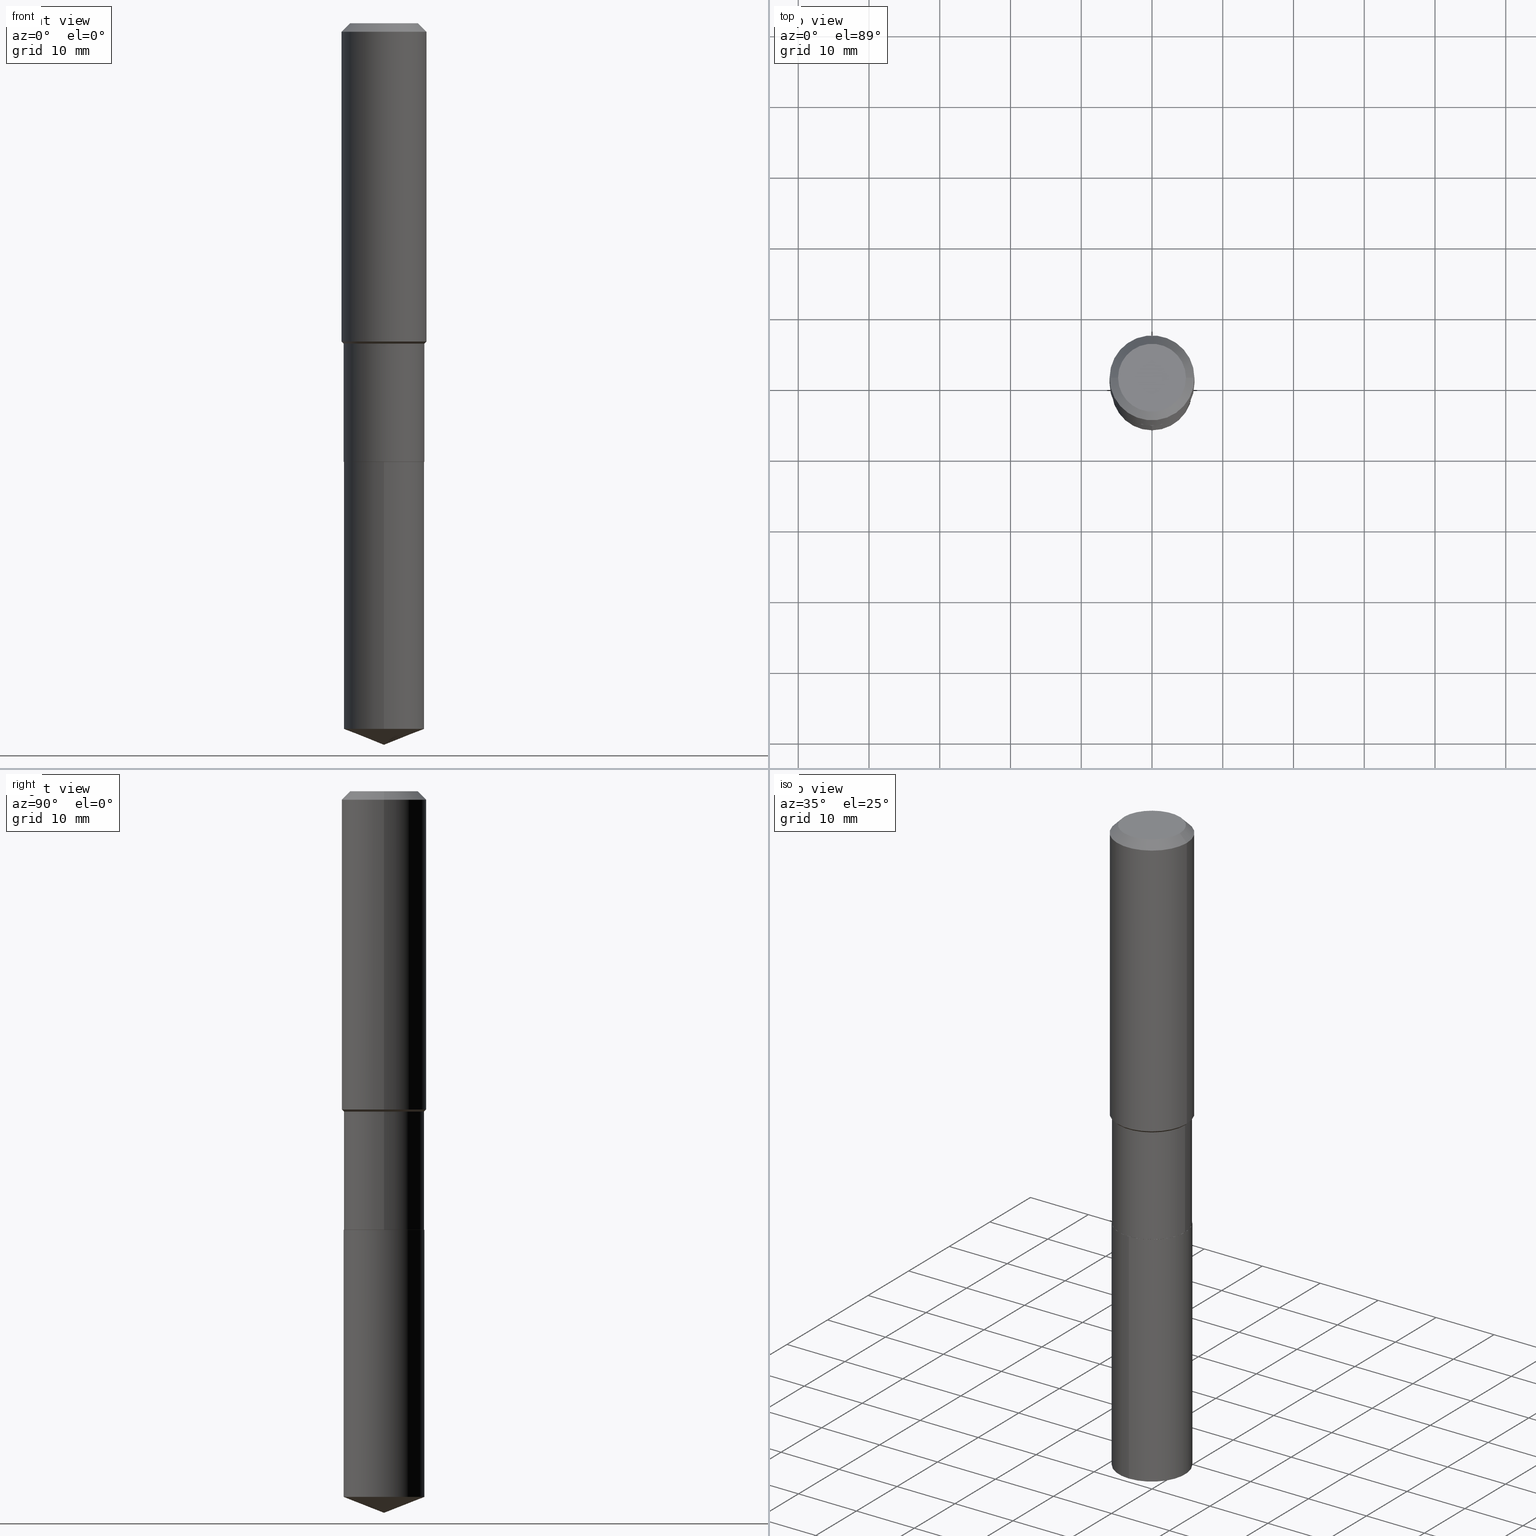
[diagram: canonical four-view strip — front | top / right | iso, engineering-drawing reading convention]
A machine part, canonical four-view strip (front | top / right | iso — engineering-drawing reading convention). The complete STEP part file that produces these views, byte-faithful:
ISO-10303-21;
HEADER;
FILE_DESCRIPTION (( 'STEP AP203' ),
    '1' );
FILE_NAME ('66484.STEP',
    '2024-04-24T23:33:29',
    ( '' ),
    ( '' ),
    'SwSTEP 2.0',
    'SolidWorks 2023',
    '' );
FILE_SCHEMA (( 'CONFIG_CONTROL_DESIGN' ));
ENDSEC;

DATA;
#1 = LOCAL_TIME ( 19, 33, 29.00000000000000000, #327 ) ;
#2 = CARTESIAN_POINT ( 'NONE',  ( -0.2243999999999999329, -4.630853328111665089E-15, -1.783000000000000140 ) ) ;
#3 = PRODUCT_DEFINITION_SHAPE ( 'NONE', 'NONE',  #151 ) ;
#4 = DIRECTION ( 'NONE',  ( 6.611014441532066589E-15, 0.9304175679820272382, 0.3665012267242905297 ) ) ;
#5 = PERSON_AND_ORGANIZATION ( #207, #107 ) ;
#6 = ORIENTED_EDGE ( 'NONE', *, *, #289, .T. ) ;
#7 = AXIS2_PLACEMENT_3D ( 'NONE', #69, #61, #33 ) ;
#8 = DIRECTION ( 'NONE',  ( -2.445468806185136597E-29, 3.491481338843145583E-15, 1.000000000000000000 ) ) ;
#9 = AXIS2_PLACEMENT_3D ( 'NONE', #124, #117, #159 ) ;
#10 = LINE ( 'NONE', #351, #347 ) ;
#11 = ORIENTED_EDGE ( 'NONE', *, *, #13, .F. ) ;
#12 = AXIS2_PLACEMENT_3D ( 'NONE', #34, #447, #263 ) ;
#13 = EDGE_CURVE ( 'NONE', #94, #281, #330, .T. ) ;
#14 = AXIS2_PLACEMENT_3D ( 'NONE', #106, #146, #111 ) ;
#15 = ORIENTED_EDGE ( 'NONE', *, *, #386, .T. ) ;
#16 = DIRECTION ( 'NONE',  ( -6.497071151882120625E-15, -0.9304175679820246847, 0.3665012267242971356 ) ) ;
#17 = ORIENTED_EDGE ( 'NONE', *, *, #30, .T. ) ;
#18 = DIRECTION ( 'NONE',  ( -2.445468806185136597E-29, 3.491481338843145583E-15, 1.000000000000000000 ) ) ;
#19 = VECTOR ( 'NONE', #16, 39.37007874015747433 ) ;
#20 = ORIENTED_EDGE ( 'NONE', *, *, #201, .F. ) ;
#21 = DIRECTION ( 'NONE',  ( -6.982962677686265133E-15, -1.000000000000000000, 3.652203200085913145E-15 ) ) ;
#22 = ORIENTED_EDGE ( 'NONE', *, *, #463, .F. ) ;
#23 = DIRECTION ( 'NONE',  ( 1.000000000000000000, -6.982962677686266711E-15, 4.876176775795936353E-29 ) ) ;
#24 = ORIENTED_EDGE ( 'NONE', *, *, #446, .T. ) ;
#25 = ADVANCED_FACE ( 'NONE', ( #439 ), #267, .T. ) ;
#26 = DIRECTION ( 'NONE',  ( -2.445399602320894408E-29, 3.491580442715579660E-15, 1.000000000000000000 ) ) ;
#27 = ORIENTED_EDGE ( 'NONE', *, *, #63, .F. ) ;
#28 = AXIS2_PLACEMENT_3D ( 'NONE', #333, #37, #364 ) ;
#29 = FACE_OUTER_BOUND ( 'NONE', #221, .T. ) ;
#30 = EDGE_CURVE ( 'NONE', #281, #202, #224, .T. ) ;
#31 = EDGE_LOOP ( 'NONE', ( #56, #318, #359, #356 ) ) ;
#32 = APPROVAL_DATE_TIME ( #440, #465 ) ;
#33 = DIRECTION ( 'NONE',  ( 1.000000000000000000, -6.982962677686266711E-15, 0.000000000000000000 ) ) ;
#34 = CARTESIAN_POINT ( 'NONE',  ( 0.000000000000000000, 0.000000000000000000, 0.000000000000000000 ) ) ;
#35 = ADVANCED_FACE ( 'NONE', ( #485 ), #70, .T. ) ;
#36 = PERSON_AND_ORGANIZATION_ROLE ( 'classification_officer' ) ;
#37 = DIRECTION ( 'NONE',  ( 2.445399602320894128E-29, -3.491580442715579660E-15, -1.000000000000000000 ) ) ;
#38 = ORIENTED_EDGE ( 'NONE', *, *, #303, .F. ) ;
#39 = SECURITY_CLASSIFICATION_LEVEL ( 'unclassified' ) ;
#40 = APPROVAL_STATUS ( 'not_yet_approved' ) ;
#41 = AXIS2_PLACEMENT_3D ( 'NONE', #441, #211, #110 ) ;
#42 = ORIENTED_EDGE ( 'NONE', *, *, #269, .F. ) ;
#43 = DIRECTION ( 'NONE',  ( -2.445468806185136597E-29, 3.491481338843145583E-15, 1.000000000000000000 ) ) ;
#44 = DIRECTION ( 'NONE',  ( 0.7071067811864267805, -2.468850131080992517E-15, 0.7071067811866682540 ) ) ;
#45 = CARTESIAN_POINT ( 'NONE',  ( 1.594457899045760384E-15, 0.2243999999999862494, -3.927306489272008427 ) ) ;
#46 = PERSON_AND_ORGANIZATION ( #207, #107 ) ;
#47 = AXIS2_PLACEMENT_3D ( 'NONE', #355, #200, #21 ) ;
#48 = DIRECTION ( 'NONE',  ( -2.445468806185136877E-29, 3.491481338843145188E-15, 1.000000000000000000 ) ) ;
#49 = VERTEX_POINT ( 'NONE', #413 ) ;
#50 = EDGE_CURVE ( 'NONE', #281, #67, #339, .T. ) ;
#51 = CONICAL_SURFACE ( 'NONE', #322, 0.2361999999999999933, 0.7853981633974452814 ) ;
#52 = MANIFOLD_SOLID_BREP ( 'Body-Move/Copy2[1]', #484 ) ;
#53 = AXIS2_PLACEMENT_3D ( 'NONE', #406, #249, #134 ) ;
#54 = FACE_OUTER_BOUND ( 'NONE', #172, .T. ) ;
#55 = CARTESIAN_POINT ( 'NONE',  ( -0.2361999999999999933, -1.496222721037607866E-15, -0.04724000000000028177 ) ) ;
#56 = ORIENTED_EDGE ( 'NONE', *, *, #487, .F. ) ;
#57 = CIRCLE ( 'NONE', #282, 0.2238999999999999879 ) ;
#58 = DIRECTION ( 'NONE',  ( -2.445468806185136597E-29, 3.491481338843145583E-15, 1.000000000000000000 ) ) ;
#59 = LOCAL_TIME ( 19, 33, 29.00000000000000000, #457 ) ;
#60 = ORIENTED_EDGE ( 'NONE', *, *, #289, .F. ) ;
#61 = DIRECTION ( 'NONE',  ( -2.445468806185136597E-29, 3.491481338843145583E-15, 1.000000000000000000 ) ) ;
#62 = ORIENTED_EDGE ( 'NONE', *, *, #187, .F. ) ;
#63 = EDGE_CURVE ( 'NONE', #310, #212, #179, .T. ) ;
#64 = DIMENSIONAL_EXPONENTS ( 1.000000000000000000, 0.000000000000000000, 0.000000000000000000, 0.000000000000000000, 0.000000000000000000, 0.000000000000000000, 0.000000000000000000 ) ;
#65 = APPLICATION_CONTEXT ( 'configuration controlled 3d designs of mechanical parts and assemblies' ) ;
#66 = CARTESIAN_POINT ( 'NONE',  ( -1.566976824872701766E-15, -0.2244000000000136719, -3.927306489272007539 ) ) ;
#67 = VERTEX_POINT ( 'NONE', #490 ) ;
#68 = PERSON_AND_ORGANIZATION ( #207, #107 ) ;
#69 = CARTESIAN_POINT ( 'NONE',  ( 1.155239464041865506E-30, -1.649375784469511859E-16, -0.04724000000000028177 ) ) ;
#70 = CONICAL_SURFACE ( 'NONE', #165, 0.2238999999999999879, 0.7853981633972775267 ) ;
#71 = ORIENTED_EDGE ( 'NONE', *, *, #232, .F. ) ;
#72 = APPROVAL_STATUS ( 'not_yet_approved' ) ;
#73 = VECTOR ( 'NONE', #181, 39.37007874015748143 ) ;
#74 = CARTESIAN_POINT ( 'NONE',  ( 0.2243999999999999329, -7.792288052030127830E-15, -1.783000000000000140 ) ) ;
#75 = CIRCLE ( 'NONE', #114, 0.2362000000000002153 ) ;
#76 = ADVANCED_FACE ( 'NONE', ( #79 ), #192, .T. ) ;
#77 = DIRECTION ( 'NONE',  ( 1.000000000000000000, -6.982962677686269077E-15, 0.000000000000000000 ) ) ;
#78 = DIRECTION ( 'NONE',  ( -6.982962677686265133E-15, -1.000000000000000000, 2.434802133390608632E-15 ) ) ;
#79 = FACE_OUTER_BOUND ( 'NONE', #288, .T. ) ;
#80 = DATE_TIME_ROLE ( 'creation_date' ) ;
#81 = DIRECTION ( 'NONE',  ( 0.7071067811865515695, -2.468850131082299265E-15, 0.7071067811865434649 ) ) ;
#82 = FACE_OUTER_BOUND ( 'NONE', #316, .T. ) ;
#83 = CARTESIAN_POINT ( 'NONE',  ( 5.969144809017300159E-29, -8.522356799982234543E-15, -2.440900000000000070 ) ) ;
#84 = CALENDAR_DATE ( 2024, 24, 4 ) ;
#85 = CARTESIAN_POINT ( 'NONE',  ( 0.2361999999999999933, -1.814313362916447440E-15, -0.04724000000000028177 ) ) ;
#86 = ADVANCED_FACE ( 'NONE', ( #299 ), #451, .T. ) ;
#87 = FACE_OUTER_BOUND ( 'NONE', #472, .T. ) ;
#88 = CIRCLE ( 'NONE', #365, 0.2244000000000000161 ) ;
#89 = DESIGN_CONTEXT ( 'detailed design', #65, 'design' ) ;
#90 = DIRECTION ( 'NONE',  ( -2.445399602320894689E-29, 3.491580442715579660E-15, 1.000000000000000000 ) ) ;
#91 = CC_DESIGN_APPROVAL ( #382, ( #408 ) ) ;
#92 = ORIENTED_EDGE ( 'NONE', *, *, #116, .F. ) ;
#93 = DIRECTION ( 'NONE',  ( -2.445399602320894408E-29, 3.491580442715579660E-15, 1.000000000000000000 ) ) ;
#94 = VERTEX_POINT ( 'NONE', #482 ) ;
#95 = DIRECTION ( 'NONE',  ( 1.000000000000000000, -6.982962677686269866E-15, 0.000000000000000000 ) ) ;
#96 = ADVANCED_FACE ( 'NONE', ( #82 ), #133, .T. ) ;
#97 = CIRCLE ( 'NONE', #197, 0.2244000000000000161 ) ;
#98 = ORIENTED_EDGE ( 'NONE', *, *, #161, .T. ) ;
#99 = CYLINDRICAL_SURFACE ( 'NONE', #376, 0.2243999999999999606 ) ;
#100 = EDGE_CURVE ( 'NONE', #286, #49, #474, .T. ) ;
#101 = VERTEX_POINT ( 'NONE', #381 ) ;
#102 = LINE ( 'NONE', #473, #390 ) ;
#103 = EDGE_LOOP ( 'NONE', ( #27, #250, #478 ) ) ;
#104 = EDGE_CURVE ( 'NONE', #260, #279, #57, .T. ) ;
#105 = DIRECTION ( 'NONE',  ( -6.982962677686265133E-15, -1.000000000000000000, 3.652203200085913145E-15 ) ) ;
#106 = CARTESIAN_POINT ( 'NONE',  ( 5.969144809017299038E-29, -8.522356799982232966E-15, -2.440900000000000070 ) ) ;
#107 = ORGANIZATION ( 'UNSPECIFIED', 'UNSPECIFIED', '' ) ;
#108 = CARTESIAN_POINT ( 'NONE',  ( 9.819991183040015308E-29, -1.402113958381295422E-14, -4.015699999999999825 ) ) ;
#109 = DIRECTION ( 'NONE',  ( 1.000000000000000000, -6.982962677686269077E-15, 0.000000000000000000 ) ) ;
#110 = DIRECTION ( 'NONE',  ( 1.000000000000000000, -6.982962677686266711E-15, 0.000000000000000000 ) ) ;
#111 = DIRECTION ( 'NONE',  ( -6.982962677686265133E-15, -1.000000000000000000, 3.652203200085913145E-15 ) ) ;
#112 = APPROVAL_DATE_TIME ( #297, #382 ) ;
#113 = ORIENTED_EDGE ( 'NONE', *, *, #341, .T. ) ;
#114 = AXIS2_PLACEMENT_3D ( 'NONE', #488, #445, #209 ) ;
#115 = ORIENTED_EDGE ( 'NONE', *, *, #232, .T. ) ;
#116 = EDGE_CURVE ( 'NONE', #279, #260, #136, .T. ) ;
#117 = DIRECTION ( 'NONE',  ( -2.445468806185136597E-29, 3.491481338843145583E-15, 1.000000000000000000 ) ) ;
#118 = ORIENTED_EDGE ( 'NONE', *, *, #361, .F. ) ;
#119 = DIRECTION ( 'NONE',  ( 0.000000000000000000, 0.000000000000000000, 1.000000000000000000 ) ) ;
#120 = DIRECTION ( 'NONE',  ( -0.7071067811864267805, 7.493145998869918709E-15, 0.7071067811866682540 ) ) ;
#121 = APPROVAL_PERSON_ORGANIZATION ( #375, #465, #360 ) ;
#122 = EDGE_LOOP ( 'NONE', ( #350, #6 ) ) ;
#123 = EDGE_LOOP ( 'NONE', ( #42, #241, #126, #62 ) ) ;
#124 = CARTESIAN_POINT ( 'NONE',  ( -9.427742298522546243E-47, 1.346031739168365344E-32, 3.855188123715862256E-18 ) ) ;
#125 =( GEOMETRIC_REPRESENTATION_CONTEXT ( 3 ) GLOBAL_UNCERTAINTY_ASSIGNED_CONTEXT ( ( #349 ) ) GLOBAL_UNIT_ASSIGNED_CONTEXT ( ( #453, #449, #414 ) ) REPRESENTATION_CONTEXT ( 'NONE', 'WORKASPACE' ) );
#126 = ORIENTED_EDGE ( 'NONE', *, *, #456, .T. ) ;
#127 = AXIS2_PLACEMENT_3D ( 'NONE', #193, #428, #307 ) ;
#128 = FACE_OUTER_BOUND ( 'NONE', #196, .T. ) ;
#129 = ORIENTED_EDGE ( 'NONE', *, *, #13, .T. ) ;
#130 = ADVANCED_FACE ( 'NONE', ( #256 ), #51, .T. ) ;
#131 = DIRECTION ( 'NONE',  ( -2.445468806185136597E-29, 3.491481338843145583E-15, 1.000000000000000000 ) ) ;
#132 = ORIENTED_EDGE ( 'NONE', *, *, #463, .T. ) ;
#133 = CONICAL_SURFACE ( 'NONE', #195, 99.94676754583997536, 1.195550537616119513 ) ;
#134 = DIRECTION ( 'NONE',  ( -6.982962677686265133E-15, -1.000000000000000000, 3.652203200085913145E-15 ) ) ;
#135 = EDGE_CURVE ( 'NONE', #464, #202, #352, .T. ) ;
#136 = CIRCLE ( 'NONE', #415, 0.2238999999999999879 ) ;
#137 = ORIENTED_EDGE ( 'NONE', *, *, #116, .T. ) ;
#138 = DIRECTION ( 'NONE',  ( 0.7071067811865453523, -7.319954787623248157E-15, -0.7071067811865496822 ) ) ;
#139 = ORIENTED_EDGE ( 'NONE', *, *, #222, .F. ) ;
#140 = FACE_OUTER_BOUND ( 'NONE', #164, .T. ) ;
#141 = DIRECTION ( 'NONE',  ( -2.445468806185136877E-29, 3.491481338843145188E-15, 1.000000000000000000 ) ) ;
#142 = PLANE ( 'NONE',  #462 ) ;
#143 = PRODUCT ( '66484', '66484', '', ( #340 ) ) ;
#144 = CARTESIAN_POINT ( 'NONE',  ( 0.2243999999999999329, -7.792288052030127830E-15, -1.783000000000000140 ) ) ;
#145 = CARTESIAN_POINT ( 'NONE',  ( 0.2362000000000001043, -1.649375784469496920E-15, 1.151752954443000508E-29 ) ) ;
#146 = DIRECTION ( 'NONE',  ( -2.445399602320894408E-29, 3.491580442715579660E-15, 1.000000000000000000 ) ) ;
#147 = LINE ( 'NONE', #2, #155 ) ;
#148 = ADVANCED_FACE ( 'NONE', ( #265 ), #236, .T. ) ;
#149 = EDGE_LOOP ( 'NONE', ( #475, #468, #115, #60 ) ) ;
#150 = DIRECTION ( 'NONE',  ( -2.445468806185136597E-29, 3.491481338843145583E-15, 1.000000000000000000 ) ) ;
#151 = PRODUCT_DEFINITION ( 'UNKNOWN', '', #231, #89 ) ;
#152 = CARTESIAN_POINT ( 'NONE',  ( 4.360270881428098808E-29, -6.225311227157329429E-15, -1.783000000000000140 ) ) ;
#153 = AXIS2_PLACEMENT_3D ( 'NONE', #298, #150, #300 ) ;
#154 = APPROVAL_ROLE ( '' ) ;
#155 = VECTOR ( 'NONE', #460, 39.37007874015748143 ) ;
#156 = DIRECTION ( 'NONE',  ( -2.445399602320894689E-29, 3.491580442715579660E-15, 1.000000000000000000 ) ) ;
#157 = ADVANCED_FACE ( 'NONE', ( #387 ), #301, .T. ) ;
#158 = CARTESIAN_POINT ( 'NONE',  ( 0.000000000000000000, 0.000000000000000000, 0.000000000000000000 ) ) ;
#159 = DIRECTION ( 'NONE',  ( 1.000000000000000000, -6.982962677686266711E-15, 4.876185090822587894E-29 ) ) ;
#160 = AXIS2_PLACEMENT_3D ( 'NONE', #246, #178, #483 ) ;
#161 = EDGE_CURVE ( 'NONE', #101, #177, #194, .T. ) ;
#162 = CYLINDRICAL_SURFACE ( 'NONE', #47, 0.2244000000000000161 ) ;
#163 = PRODUCT_RELATED_PRODUCT_CATEGORY ( 'detail', '', ( #143 ) ) ;
#164 = EDGE_LOOP ( 'NONE', ( #210, #334, #216, #11 ) ) ;
#165 = AXIS2_PLACEMENT_3D ( 'NONE', #254, #296, #417 ) ;
#166 = DIRECTION ( 'NONE',  ( 1.000000000000000000, -6.982962677686269866E-15, 0.000000000000000000 ) ) ;
#167 = VECTOR ( 'NONE', #120, 39.37007874015748143 ) ;
#168 = ORIENTED_EDGE ( 'NONE', *, *, #248, .T. ) ;
#169 = EDGE_CURVE ( 'NONE', #101, #67, #344, .T. ) ;
#171 = CARTESIAN_POINT ( 'NONE',  ( -0.2362000000000001043, 1.678301941865357380E-15, -1.161852468318209317E-29 ) ) ;
#170 = APPROVAL_PERSON_ORGANIZATION ( #68, #382, #183 ) ;
#172 = EDGE_LOOP ( 'NONE', ( #24, #168, #208, #71 ) ) ;
#173 = CARTESIAN_POINT ( 'NONE',  ( 0.000000000000000000, 0.000000000000000000, 0.000000000000000000 ) ) ;
#174 = ORIENTED_EDGE ( 'NONE', *, *, #341, .F. ) ;
#175 = DIRECTION ( 'NONE',  ( -0.7071067811865453523, 2.468850131082234184E-15, -0.7071067811865496822 ) ) ;
#176 = CONICAL_SURFACE ( 'NONE', #235, 99.94676754583997536, 1.195550537616119513 ) ;
#177 = VERTEX_POINT ( 'NONE', #55 ) ;
#178 = DIRECTION ( 'NONE',  ( -2.445468806185136597E-29, 3.491481338843145583E-15, 1.000000000000000000 ) ) ;
#179 = LINE ( 'NONE', #337, #374 ) ;
#180 = CALENDAR_DATE ( 2024, 24, 4 ) ;
#181 = DIRECTION ( 'NONE',  ( -2.445468806185136877E-29, 3.491481338843145188E-15, 1.000000000000000000 ) ) ;
#182 = ORIENTED_EDGE ( 'NONE', *, *, #353, .F. ) ;
#183 = APPROVAL_ROLE ( '' ) ;
#184 = CARTESIAN_POINT ( 'NONE',  ( 0.2238999999999999879, -1.008584214351618994E-14, -2.440900000000000070 ) ) ;
#185 = CARTESIAN_POINT ( 'NONE',  ( -8.645541479177115506E-28, 1.234428992761355637E-13, 35.35437874015748605 ) ) ;
#186 = CIRCLE ( 'NONE', #291, 0.2244000000000000161 ) ;
#187 = EDGE_CURVE ( 'NONE', #464, #94, #425, .T. ) ;
#188 = ORIENTED_EDGE ( 'NONE', *, *, #187, .T. ) ;
#189 = ADVANCED_FACE ( 'NONE', ( #54 ), #162, .T. ) ;
#190 = DIRECTION ( 'NONE',  ( 1.000000000000000000, -6.982962677686269866E-15, 0.000000000000000000 ) ) ;
#191 = APPLICATION_PROTOCOL_DEFINITION ( 'international standard', 'config_control_design', 1994, #419 ) ;
#192 = CONICAL_SURFACE ( 'NONE', #385, 0.2361999999999999933, 0.7853981633974452814 ) ;
#193 = CARTESIAN_POINT ( 'NONE',  ( -4.713871149261273121E-47, 6.730158695841826722E-33, 1.927594061857931128E-18 ) ) ;
#194 = LINE ( 'NONE', #171, #272 ) ;
#195 = AXIS2_PLACEMENT_3D ( 'NONE', #185, #226, #292 ) ;
#196 = EDGE_LOOP ( 'NONE', ( #17, #132, #174, #277 ) ) ;
#197 = AXIS2_PLACEMENT_3D ( 'NONE', #238, #275, #278 ) ;
#198 = CC_DESIGN_PERSON_AND_ORGANIZATION_ASSIGNMENT ( #338, #264, ( #151 ) ) ;
#199 = DIRECTION ( 'NONE',  ( -6.982962677686265133E-15, -1.000000000000000000, 2.434802133390608632E-15 ) ) ;
#200 = DIRECTION ( 'NONE',  ( -2.445399602320894408E-29, 3.491580442715579660E-15, 1.000000000000000000 ) ) ;
#201 = EDGE_CURVE ( 'NONE', #437, #239, #416, .T. ) ;
#202 = VERTEX_POINT ( 'NONE', #315 ) ;
#203 = AXIS2_PLACEMENT_3D ( 'NONE', #458, #131, #95 ) ;
#204 = DIRECTION ( 'NONE',  ( -2.445468806185136877E-29, 3.491481338843145188E-15, 1.000000000000000000 ) ) ;
#205 = VECTOR ( 'NONE', #175, 39.37007874015748143 ) ;
#206 = CC_DESIGN_APPROVAL ( #465, ( #231 ) ) ;
#207 = PERSON ( 'UNSPECIFIED', 'UNSPECIFIED', 'UNSPECIFIED', ('UNSPECIFIED'), ('UNSPECIFIED'), ('UNSPECIFIED') ) ;
#208 = ORIENTED_EDGE ( 'NONE', *, *, #100, .F. ) ;
#209 = DIRECTION ( 'NONE',  ( 1.000000000000000000, -6.982962677686266711E-15, 0.000000000000000000 ) ) ;
#210 = ORIENTED_EDGE ( 'NONE', *, *, #222, .T. ) ;
#211 = DIRECTION ( 'NONE',  ( -2.445468806185136597E-29, 3.491481338843145583E-15, 1.000000000000000000 ) ) ;
#212 = VERTEX_POINT ( 'NONE', #45 ) ;
#213 = VECTOR ( 'NONE', #204, 39.37007874015748143 ) ;
#214 = ADVANCED_FACE ( 'NONE', ( #87 ), #424, .F. ) ;
#215 = DIRECTION ( 'NONE',  ( 1.000000000000000000, -6.982962677686266711E-15, 4.876176775795935793E-29 ) ) ;
#216 = ORIENTED_EDGE ( 'NONE', *, *, #30, .F. ) ;
#217 = CARTESIAN_POINT ( 'NONE',  ( 0.000000000000000000, 0.000000000000000000, 0.000000000000000000 ) ) ;
#218 = CARTESIAN_POINT ( 'NONE',  ( 5.969144809017300159E-29, -8.522356799982234543E-15, -2.440900000000000070 ) ) ;
#219 = DATE_TIME_ROLE ( 'classification_date' ) ;
#220 = LINE ( 'NONE', #184, #367 ) ;
#221 = EDGE_LOOP ( 'NONE', ( #92, #326 ) ) ;
#222 = EDGE_CURVE ( 'NONE', #94, #464, #97, .T. ) ;
#223 = APPLICATION_PROTOCOL_DEFINITION ( 'international standard', 'config_control_design', 1994, #65 ) ;
#224 = CIRCLE ( 'NONE', #405, 0.2243999999999999329 ) ;
#225 = CARTESIAN_POINT ( 'NONE',  ( 1.155239464041865506E-30, -1.649375784469511859E-16, -0.04724000000000028177 ) ) ;
#226 = DIRECTION ( 'NONE',  ( -2.445399602320894408E-29, 3.491580442715579660E-15, 1.000000000000000000 ) ) ;
#227 = ADVANCED_FACE ( 'NONE', ( #128 ), #274, .T. ) ;
#228 = DIRECTION ( 'NONE',  ( -2.445468806185136597E-29, 3.491481338843145583E-15, 1.000000000000000000 ) ) ;
#229 = DATE_AND_TIME ( #84, #388 ) ;
#230 = DIRECTION ( 'NONE',  ( 1.000000000000000000, -6.982962677686266711E-15, 0.000000000000000000 ) ) ;
#231 = PRODUCT_DEFINITION_FORMATION_WITH_SPECIFIED_SOURCE ( 'ANY', '', #143, .NOT_KNOWN. ) ;
#232 = EDGE_CURVE ( 'NONE', #342, #286, #469, .T. ) ;
#233 = AXIS2_PLACEMENT_3D ( 'NONE', #432, #395, #317 ) ;
#234 = CC_DESIGN_DATE_AND_TIME_ASSIGNMENT ( #229, #80, ( #151 ) ) ;
#235 = AXIS2_PLACEMENT_3D ( 'NONE', #362, #26, #323 ) ;
#236 = CYLINDRICAL_SURFACE ( 'NONE', #233, 0.2362000000000001043 ) ;
#237 = EDGE_CURVE ( 'NONE', #212, #342, #309, .T. ) ;
#238 = CARTESIAN_POINT ( 'NONE',  ( 5.967922074614207358E-29, -8.520611059312812251E-15, -2.440399999999999903 ) ) ;
#239 = VERTEX_POINT ( 'NONE', #311 ) ;
#240 = LINE ( 'NONE', #461, #167 ) ;
#241 = ORIENTED_EDGE ( 'NONE', *, *, #104, .T. ) ;
#242 = AXIS2_PLACEMENT_3D ( 'NONE', #83, #378, #259 ) ;
#243 = DIRECTION ( 'NONE',  ( 1.000000000000000000, -6.982962677686266711E-15, 0.000000000000000000 ) ) ;
#244 = AXIS2_PLACEMENT_3D ( 'NONE', #348, #93, #199 ) ;
#245 = VERTEX_POINT ( 'NONE', #85 ) ;
#246 = CARTESIAN_POINT ( 'NONE',  ( 4.360270881428098808E-29, -6.225311227157329429E-15, -1.783000000000000140 ) ) ;
#247 = EDGE_LOOP ( 'NONE', ( #137, #396, #139, #459 ) ) ;
#248 = EDGE_CURVE ( 'NONE', #212, #49, #10, .T. ) ;
#249 = DIRECTION ( 'NONE',  ( -2.445399602320894408E-29, 3.491580442715579660E-15, 1.000000000000000000 ) ) ;
#250 = ORIENTED_EDGE ( 'NONE', *, *, #273, .T. ) ;
#251 = PERSON_AND_ORGANIZATION ( #207, #107 ) ;
#252 = FACE_OUTER_BOUND ( 'NONE', #149, .T. ) ;
#253 = AXIS2_PLACEMENT_3D ( 'NONE', #158, #119, #258 ) ;
#254 = CARTESIAN_POINT ( 'NONE',  ( 5.969144809017300159E-29, -8.522356799982234543E-15, -2.440900000000000070 ) ) ;
#255 = CARTESIAN_POINT ( 'NONE',  ( -0.1889600000000000168, 1.401969416799070942E-15, 3.855188123706346622E-18 ) ) ;
#256 = FACE_OUTER_BOUND ( 'NONE', #31, .T. ) ;
#257 = PERSON_AND_ORGANIZATION ( #207, #107 ) ;
#258 = DIRECTION ( 'NONE',  ( 1.000000000000000000, 0.000000000000000000, 0.000000000000000000 ) ) ;
#259 = DIRECTION ( 'NONE',  ( 1.000000000000000000, -6.982962677686269077E-15, 0.000000000000000000 ) ) ;
#260 = VERTEX_POINT ( 'NONE', #392 ) ;
#261 = AXIS2_PLACEMENT_3D ( 'NONE', #391, #18, #230 ) ;
#262 = APPROVAL_DATE_TIME ( #306, #325 ) ;
#263 = DIRECTION ( 'NONE',  ( 1.000000000000000000, -6.982962677686266711E-15, 4.876176775795936353E-29 ) ) ;
#264 = PERSON_AND_ORGANIZATION_ROLE ( 'creator' ) ;
#265 = FACE_OUTER_BOUND ( 'NONE', #394, .T. ) ;
#266 = CALENDAR_DATE ( 2024, 24, 4 ) ;
#267 = CONICAL_SURFACE ( 'NONE', #242, 0.2238999999999999879, 0.7853981633972775267 ) ;
#268 = CIRCLE ( 'NONE', #160, 0.2243999999999999329 ) ;
#269 = EDGE_CURVE ( 'NONE', #260, #464, #240, .T. ) ;
#270 = ORIENTED_EDGE ( 'NONE', *, *, #50, .T. ) ;
#271 = LINE ( 'NONE', #427, #19 ) ;
#272 = VECTOR ( 'NONE', #48, 39.37007874015748143 ) ;
#273 = EDGE_CURVE ( 'NONE', #310, #342, #271, .T. ) ;
#274 = CONICAL_SURFACE ( 'NONE', #324, 0.2243999999999999329, 0.7853981633974540522 ) ;
#275 = DIRECTION ( 'NONE',  ( -2.445468806185136597E-29, 3.491481338843145583E-15, 1.000000000000000000 ) ) ;
#276 = CIRCLE ( 'NONE', #7, 0.2361999999999999933 ) ;
#277 = ORIENTED_EDGE ( 'NONE', *, *, #50, .F. ) ;
#278 = DIRECTION ( 'NONE',  ( 1.000000000000000000, -6.982962677686266711E-15, 0.000000000000000000 ) ) ;
#279 = VERTEX_POINT ( 'NONE', #358 ) ;
#280 = DIRECTION ( 'NONE',  ( 2.445468806185136597E-29, -3.491481338843145583E-15, -1.000000000000000000 ) ) ;
#281 = VERTEX_POINT ( 'NONE', #74 ) ;
#282 = AXIS2_PLACEMENT_3D ( 'NONE', #409, #421, #77 ) ;
#283 = CARTESIAN_POINT ( 'NONE',  ( 5.969144809017299038E-29, -8.522356799982232966E-15, -2.440900000000000070 ) ) ;
#284 = ORIENTED_EDGE ( 'NONE', *, *, #353, .T. ) ;
#285 = PLANE ( 'NONE',  #28 ) ;
#286 = VERTEX_POINT ( 'NONE', #372 ) ;
#287 = FACE_OUTER_BOUND ( 'NONE', #404, .T. ) ;
#288 = EDGE_LOOP ( 'NONE', ( #431, #20, #354, #363 ) ) ;
#289 = EDGE_CURVE ( 'NONE', #49, #286, #186, .T. ) ;
#290 = LINE ( 'NONE', #145, #73 ) ;
#291 = AXIS2_PLACEMENT_3D ( 'NONE', #283, #295, #105 ) ;
#292 = DIRECTION ( 'NONE',  ( -6.982962677686265133E-15, -1.000000000000000000, 3.498627837350004222E-15 ) ) ;
#293 = DATE_AND_TIME ( #180, #1 ) ;
#294 = CC_DESIGN_PERSON_AND_ORGANIZATION_ASSIGNMENT ( #251, #36, ( #408 ) ) ;
#295 = DIRECTION ( 'NONE',  ( -2.445399602320894408E-29, 3.491580442715579660E-15, 1.000000000000000000 ) ) ;
#296 = DIRECTION ( 'NONE',  ( -2.445468806185136597E-29, 3.491481338843145583E-15, 1.000000000000000000 ) ) ;
#297 = DATE_AND_TIME ( #332, #328 ) ;
#298 = CARTESIAN_POINT ( 'NONE',  ( -9.427742298522546243E-47, 1.346031739168365344E-32, 3.855188123715862256E-18 ) ) ;
#299 = FACE_OUTER_BOUND ( 'NONE', #302, .T. ) ;
#300 = DIRECTION ( 'NONE',  ( 1.000000000000000000, -6.982962677686266711E-15, 4.876185090822587894E-29 ) ) ;
#301 = CONICAL_SURFACE ( 'NONE', #203, 0.2243999999999999329, 0.7853981633974540522 ) ;
#302 = EDGE_LOOP ( 'NONE', ( #313, #188, #129, #399 ) ) ;
#303 = EDGE_CURVE ( 'NONE', #177, #245, #276, .T. ) ;
#304 = DIRECTION ( 'NONE',  ( -1.000000000000000000, 6.982962677686266711E-15, 0.000000000000000000 ) ) ;
#305 = CC_DESIGN_PERSON_AND_ORGANIZATION_ASSIGNMENT ( #479, #448, ( #231 ) ) ;
#306 = DATE_AND_TIME ( #266, #59 ) ;
#307 = DIRECTION ( 'NONE',  ( -1.000000000000000000, 6.982962677686265922E-15, -4.876176775795935793E-29 ) ) ;
#308 = VECTOR ( 'NONE', #81, 39.37007874015748143 ) ;
#309 = CIRCLE ( 'NONE', #244, 0.2244000000000000161 ) ;
#310 = VERTEX_POINT ( 'NONE', #108 ) ;
#311 = CARTESIAN_POINT ( 'NONE',  ( 0.1889600000000000168, -1.540873453589747738E-15, 3.855188123725863225E-18 ) ) ;
#312 = VECTOR ( 'NONE', #141, 39.37007874015748143 ) ;
#313 = ORIENTED_EDGE ( 'NONE', *, *, #135, .F. ) ;
#314 = AXIS2_PLACEMENT_3D ( 'NONE', #217, #477, #215 ) ;
#315 = CARTESIAN_POINT ( 'NONE',  ( -0.2243999999999999329, -5.778503244189406500E-15, -1.783000000000000140 ) ) ;
#316 = EDGE_LOOP ( 'NONE', ( #443, #321, #370 ) ) ;
#317 = DIRECTION ( 'NONE',  ( 1.000000000000000000, -6.982962677686266711E-15, 4.876176775795935793E-29 ) ) ;
#318 = ORIENTED_EDGE ( 'NONE', *, *, #379, .T. ) ;
#319 = ADVANCED_FACE ( 'NONE', ( #252 ), #335, .T. ) ;
#320 = DIRECTION ( 'NONE',  ( 1.000000000000000000, -6.982962677686265922E-15, 4.876176775795935793E-29 ) ) ;
#321 = ORIENTED_EDGE ( 'NONE', *, *, #63, .T. ) ;
#322 = AXIS2_PLACEMENT_3D ( 'NONE', #411, #280, #304 ) ;
#323 = DIRECTION ( 'NONE',  ( -6.982962677686265133E-15, -1.000000000000000000, 3.498627837350004222E-15 ) ) ;
#324 = AXIS2_PLACEMENT_3D ( 'NONE', #346, #8, #166 ) ;
#325 = APPROVAL ( #412, 'UNSPECIFIED' ) ;
#326 = ORIENTED_EDGE ( 'NONE', *, *, #104, .F. ) ;
#327 = COORDINATED_UNIVERSAL_TIME_OFFSET ( 5, 0, .BEHIND. ) ;
#329 = LINE ( 'NONE', #369, #205 ) ;
#328 = LOCAL_TIME ( 19, 33, 29.00000000000000000, #402 ) ;
#330 = LINE ( 'NONE', #455, #312 ) ;
#331 = EDGE_CURVE ( 'NONE', #437, #177, #329, .T. ) ;
#332 = CALENDAR_DATE ( 2024, 24, 4 ) ;
#333 = CARTESIAN_POINT ( 'NONE',  ( 5.969144809017299038E-29, -8.522356799982232966E-15, -2.440900000000000070 ) ) ;
#334 = ORIENTED_EDGE ( 'NONE', *, *, #135, .T. ) ;
#335 = CYLINDRICAL_SURFACE ( 'NONE', #53, 0.2244000000000000161 ) ;
#336 = CC_DESIGN_APPROVAL ( #325, ( #151 ) ) ;
#337 = CARTESIAN_POINT ( 'NONE',  ( 9.820331984917436461E-29, -1.402065577852850472E-14, -4.015699999999999825 ) ) ;
#338 = PERSON_AND_ORGANIZATION ( #207, #107 ) ;
#339 = LINE ( 'NONE', #144, #308 ) ;
#340 = MECHANICAL_CONTEXT ( 'NONE', #419, 'mechanical' ) ;
#341 = EDGE_CURVE ( 'NONE', #67, #101, #75, .T. ) ;
#342 = VERTEX_POINT ( 'NONE', #66 ) ;
#343 = CARTESIAN_POINT ( 'NONE',  ( -0.2244000000000000161, -5.778503244189405711E-15, -2.440399999999999903 ) ) ;
#344 = CIRCLE ( 'NONE', #261, 0.2362000000000002153 ) ;
#345 = CC_DESIGN_DATE_AND_TIME_ASSIGNMENT ( #293, #219, ( #408 ) ) ;
#346 = CARTESIAN_POINT ( 'NONE',  ( 4.360270881428098808E-29, -6.225311227157329429E-15, -1.783000000000000140 ) ) ;
#347 = VECTOR ( 'NONE', #156, 39.37007874015748143 ) ;
#348 = CARTESIAN_POINT ( 'NONE',  ( 9.604002646770265742E-29, -1.371226462784990284E-14, -3.927306489272007983 ) ) ;
#349 = UNCERTAINTY_MEASURE_WITH_UNIT (LENGTH_MEASURE( 1.000000000000000082E-05 ), #453, 'distance_accuracy_value', 'NONE');
#350 = ORIENTED_EDGE ( 'NONE', *, *, #100, .T. ) ;
#351 = CARTESIAN_POINT ( 'NONE',  ( 1.594457899045724293E-15, 0.2243999999999914674, -2.440900000000000514 ) ) ;
#352 = LINE ( 'NONE', #471, #213 ) ;
#353 = EDGE_CURVE ( 'NONE', #67, #245, #290, .T. ) ;
#354 = ORIENTED_EDGE ( 'NONE', *, *, #331, .T. ) ;
#355 = CARTESIAN_POINT ( 'NONE',  ( 5.969144809017299038E-29, -8.522356799982232966E-15, -2.440900000000000070 ) ) ;
#356 = ORIENTED_EDGE ( 'NONE', *, *, #331, .F. ) ;
#357 = ADVANCED_FACE ( 'NONE', ( #29 ), #142, .F. ) ;
#358 = CARTESIAN_POINT ( 'NONE',  ( 0.2238999999999999879, -1.008584214351618994E-14, -2.440900000000000070 ) ) ;
#359 = ORIENTED_EDGE ( 'NONE', *, *, #361, .T. ) ;
#360 = APPROVAL_ROLE ( '' ) ;
#361 = EDGE_CURVE ( 'NONE', #245, #177, #442, .T. ) ;
#362 = CARTESIAN_POINT ( 'NONE',  ( -8.645541479177115506E-28, 1.234428992761355637E-13, 35.35437874015748605 ) ) ;
#363 = ORIENTED_EDGE ( 'NONE', *, *, #303, .T. ) ;
#364 = DIRECTION ( 'NONE',  ( 6.982962677686265922E-15, 1.000000000000000000, -3.491580442715579660E-15 ) ) ;
#365 = AXIS2_PLACEMENT_3D ( 'NONE', #436, #410, #78 ) ;
#366 = ADVANCED_FACE ( 'NONE', ( #140 ), #99, .T. ) ;
#367 = VECTOR ( 'NONE', #44, 39.37007874015748143 ) ;
#368 = ORIENTED_EDGE ( 'NONE', *, *, #201, .T. ) ;
#369 = CARTESIAN_POINT ( 'NONE',  ( -0.2361999999999999933, 1.484438206022545019E-15, -0.04724000000000028177 ) ) ;
#370 = ORIENTED_EDGE ( 'NONE', *, *, #446, .F. ) ;
#371 = PERSON_AND_ORGANIZATION_ROLE ( 'creator' ) ;
#372 = CARTESIAN_POINT ( 'NONE',  ( -1.566976824872738448E-15, -0.2244000000000085371, -2.440899999999999181 ) ) ;
#373 = DIRECTION ( 'NONE',  ( -1.000000000000000000, 6.982962677686266711E-15, 0.000000000000000000 ) ) ;
#374 = VECTOR ( 'NONE', #4, 39.37007874015748143 ) ;
#375 = PERSON_AND_ORGANIZATION ( #207, #107 ) ;
#376 = AXIS2_PLACEMENT_3D ( 'NONE', #173, #398, #23 ) ;
#377 = MANIFOLD_SOLID_BREP ( 'Body-Move/Copy2[2]', #452 ) ;
#378 = DIRECTION ( 'NONE',  ( -2.445468806185136597E-29, 3.491481338843145583E-15, 1.000000000000000000 ) ) ;
#379 = EDGE_CURVE ( 'NONE', #239, #245, #102, .T. ) ;
#380 =( LENGTH_UNIT ( ) NAMED_UNIT ( * ) SI_UNIT ( $, .METRE. ) );
#381 = CARTESIAN_POINT ( 'NONE',  ( -0.2362000000000002153, -4.505809805493621606E-15, -1.771199999999999886 ) ) ;
#382 = APPROVAL ( #72, 'UNSPECIFIED' ) ;
#383 = DIRECTION ( 'NONE',  ( 2.445468806185136597E-29, -3.491481338843145583E-15, -1.000000000000000000 ) ) ;
#384 = LENGTH_MEASURE_WITH_UNIT ( LENGTH_MEASURE( 0.02539999999999999897 ), #380 );
#385 = AXIS2_PLACEMENT_3D ( 'NONE', #225, #383, #373 ) ;
#386 = EDGE_CURVE ( 'NONE', #202, #281, #268, .T. ) ;
#387 = FACE_OUTER_BOUND ( 'NONE', #470, .T. ) ;
#388 = LOCAL_TIME ( 19, 33, 29.00000000000000000, #422 ) ;
#389 = ADVANCED_FACE ( 'NONE', ( #400 ), #176, .T. ) ;
#390 = VECTOR ( 'NONE', #138, 39.37007874015748143 ) ;
#391 = CARTESIAN_POINT ( 'NONE',  ( 4.331414349515113625E-29, -6.184111747358979578E-15, -1.771199999999999886 ) ) ;
#392 = CARTESIAN_POINT ( 'NONE',  ( -0.2238999999999999879, -6.928802387441259112E-15, -2.440900000000000070 ) ) ;
#393 = CC_DESIGN_SECURITY_CLASSIFICATION ( #408, ( #231 ) ) ;
#394 = EDGE_LOOP ( 'NONE', ( #113, #98, #118, #182 ) ) ;
#395 = DIRECTION ( 'NONE',  ( -2.445468806185136597E-29, 3.491481338843145583E-15, 1.000000000000000000 ) ) ;
#396 = ORIENTED_EDGE ( 'NONE', *, *, #269, .T. ) ;
#397 = LOCAL_TIME ( 19, 33, 29.00000000000000000, #476 ) ;
#398 = DIRECTION ( 'NONE',  ( -2.445468806185136597E-29, 3.491481338843145583E-15, 1.000000000000000000 ) ) ;
#399 = ORIENTED_EDGE ( 'NONE', *, *, #386, .F. ) ;
#400 = FACE_OUTER_BOUND ( 'NONE', #103, .T. ) ;
#401 = ORIENTED_EDGE ( 'NONE', *, *, #161, .F. ) ;
#402 = COORDINATED_UNIVERSAL_TIME_OFFSET ( 5, 0, .BEHIND. ) ;
#403 = CYLINDRICAL_SURFACE ( 'NONE', #314, 0.2362000000000001043 ) ;
#404 = EDGE_LOOP ( 'NONE', ( #401, #433, #284, #38 ) ) ;
#405 = AXIS2_PLACEMENT_3D ( 'NONE', #152, #228, #190 ) ;
#406 = CARTESIAN_POINT ( 'NONE',  ( 5.969144809017299038E-29, -8.522356799982232966E-15, -2.440900000000000070 ) ) ;
#407 = APPROVAL_PERSON_ORGANIZATION ( #5, #325, #154 ) ;
#408 = SECURITY_CLASSIFICATION ( '', '', #39 ) ;
#409 = CARTESIAN_POINT ( 'NONE',  ( 5.969144809017300159E-29, -8.522356799982234543E-15, -2.440900000000000070 ) ) ;
#410 = DIRECTION ( 'NONE',  ( -2.445399602320894408E-29, 3.491580442715579660E-15, 1.000000000000000000 ) ) ;
#411 = CARTESIAN_POINT ( 'NONE',  ( 1.155239464041865506E-30, -1.649375784469511859E-16, -0.04724000000000028177 ) ) ;
#412 = APPROVAL_STATUS ( 'not_yet_approved' ) ;
#413 = CARTESIAN_POINT ( 'NONE',  ( 1.594457899045760975E-15, 0.2243999999999914674, -2.440900000000000514 ) ) ;
#414 =( NAMED_UNIT ( * ) SI_UNIT ( $, .STERADIAN. ) SOLID_ANGLE_UNIT ( ) );
#415 = AXIS2_PLACEMENT_3D ( 'NONE', #218, #43, #109 ) ;
#416 = CIRCLE ( 'NONE', #9, 0.1889600000000000168 ) ;
#417 = DIRECTION ( 'NONE',  ( 1.000000000000000000, -6.982962677686269077E-15, 0.000000000000000000 ) ) ;
#418 = CC_DESIGN_PERSON_AND_ORGANIZATION_ASSIGNMENT ( #46, #420, ( #143 ) ) ;
#419 = APPLICATION_CONTEXT ( 'configuration controlled 3d designs of mechanical parts and assemblies' ) ;
#420 = PERSON_AND_ORGANIZATION_ROLE ( 'design_owner' ) ;
#421 = DIRECTION ( 'NONE',  ( -2.445468806185136597E-29, 3.491481338843145583E-15, 1.000000000000000000 ) ) ;
#422 = COORDINATED_UNIVERSAL_TIME_OFFSET ( 5, 0, .BEHIND. ) ;
#423 = ADVANCED_FACE ( 'NONE', ( #287 ), #403, .T. ) ;
#424 = PLANE ( 'NONE',  #127 ) ;
#425 = CIRCLE ( 'NONE', #489, 0.2244000000000000161 ) ;
#426 = ADVANCED_FACE ( 'NONE', ( #438 ), #285, .F. ) ;
#427 = CARTESIAN_POINT ( 'NONE',  ( 9.819991183040015308E-29, -1.402113958381295106E-14, -4.015699999999999825 ) ) ;
#428 = DIRECTION ( 'NONE',  ( 2.438088387897960049E-29, -3.491481338843145188E-15, -1.000000000000000000 ) ) ;
#429 = ORIENTED_EDGE ( 'NONE', *, *, #169, .F. ) ;
#430 = CARTESIAN_POINT ( 'NONE',  ( -1.566976824872738448E-15, -0.2244000000000085371, -2.440899999999999181 ) ) ;
#431 = ORIENTED_EDGE ( 'NONE', *, *, #379, .F. ) ;
#432 = CARTESIAN_POINT ( 'NONE',  ( 0.000000000000000000, 0.000000000000000000, 0.000000000000000000 ) ) ;
#433 = ORIENTED_EDGE ( 'NONE', *, *, #169, .T. ) ;
#434 = CARTESIAN_POINT ( 'NONE',  ( 3.889485735741518307E-29, -1.150054695975673190E-14, -2.440900000000000070 ) ) ;
#435 = ORIENTED_EDGE ( 'NONE', *, *, #487, .T. ) ;
#436 = CARTESIAN_POINT ( 'NONE',  ( 9.604002646770265742E-29, -1.371226462784990284E-14, -3.927306489272007983 ) ) ;
#437 = VERTEX_POINT ( 'NONE', #255 ) ;
#438 = FACE_OUTER_BOUND ( 'NONE', #122, .T. ) ;
#439 = FACE_OUTER_BOUND ( 'NONE', #247, .T. ) ;
#440 = DATE_AND_TIME ( #486, #397 ) ;
#441 = CARTESIAN_POINT ( 'NONE',  ( 1.155239464041865506E-30, -1.649375784469511859E-16, -0.04724000000000028177 ) ) ;
#442 = CIRCLE ( 'NONE', #41, 0.2361999999999999933 ) ;
#443 = ORIENTED_EDGE ( 'NONE', *, *, #273, .F. ) ;
#444 = SHAPE_DEFINITION_REPRESENTATION ( #3, #450 ) ;
#445 = DIRECTION ( 'NONE',  ( -2.445468806185136597E-29, 3.491481338843145583E-15, 1.000000000000000000 ) ) ;
#446 = EDGE_CURVE ( 'NONE', #342, #212, #88, .T. ) ;
#447 = DIRECTION ( 'NONE',  ( -2.445468806185136597E-29, 3.491481338843145583E-15, 1.000000000000000000 ) ) ;
#448 = PERSON_AND_ORGANIZATION_ROLE ( 'design_supplier' ) ;
#449 =( NAMED_UNIT ( * ) PLANE_ANGLE_UNIT ( ) SI_UNIT ( $, .RADIAN. ) );
#450 = ADVANCED_BREP_SHAPE_REPRESENTATION ( '66484', ( #52, #377, #253 ), #125 ) ;
#451 = CYLINDRICAL_SURFACE ( 'NONE', #12, 0.2243999999999999606 ) ;
#452 = CLOSED_SHELL ( 'NONE', ( #25, #130, #148, #227, #366, #86, #157, #423, #76, #214, #357, #35 ) ) ;
#453 =( CONVERSION_BASED_UNIT ( 'INCH', #384 ) LENGTH_UNIT ( ) NAMED_UNIT ( #64 ) );
#454 = VECTOR ( 'NONE', #90, 39.37007874015748143 ) ;
#455 = CARTESIAN_POINT ( 'NONE',  ( 0.2243999999999999606, -1.566976824872798007E-15, 1.094214068488607909E-29 ) ) ;
#456 = EDGE_CURVE ( 'NONE', #279, #94, #220, .T. ) ;
#457 = COORDINATED_UNIVERSAL_TIME_OFFSET ( 5, 0, .BEHIND. ) ;
#458 = CARTESIAN_POINT ( 'NONE',  ( 4.360270881428098808E-29, -6.225311227157329429E-15, -1.783000000000000140 ) ) ;
#459 = ORIENTED_EDGE ( 'NONE', *, *, #456, .F. ) ;
#460 = DIRECTION ( 'NONE',  ( -0.7071067811865515695, 7.493145998870368360E-15, 0.7071067811865434649 ) ) ;
#461 = CARTESIAN_POINT ( 'NONE',  ( -0.2238999999999999879, -6.931451614615370313E-15, -2.440900000000000070 ) ) ;
#462 = AXIS2_PLACEMENT_3D ( 'NONE', #434, #480, #320 ) ;
#463 = EDGE_CURVE ( 'NONE', #202, #101, #147, .T. ) ;
#464 = VERTEX_POINT ( 'NONE', #343 ) ;
#465 = APPROVAL ( #40, 'UNSPECIFIED' ) ;
#466 = CARTESIAN_POINT ( 'NONE',  ( 5.967922074614207358E-29, -8.520611059312812251E-15, -2.440399999999999903 ) ) ;
#467 = CIRCLE ( 'NONE', #153, 0.1889600000000000168 ) ;
#468 = ORIENTED_EDGE ( 'NONE', *, *, #237, .T. ) ;
#469 = LINE ( 'NONE', #430, #454 ) ;
#470 = EDGE_LOOP ( 'NONE', ( #22, #15, #270, #429 ) ) ;
#471 = CARTESIAN_POINT ( 'NONE',  ( -0.2243999999999999606, 1.594457899045664537E-15, -1.103809034253200744E-29 ) ) ;
#472 = EDGE_LOOP ( 'NONE', ( #368, #435 ) ) ;
#473 = CARTESIAN_POINT ( 'NONE',  ( 0.2361999999999999933, -1.785387205520586782E-15, -0.04724000000000028177 ) ) ;
#474 = CIRCLE ( 'NONE', #14, 0.2244000000000000161 ) ;
#475 = ORIENTED_EDGE ( 'NONE', *, *, #248, .F. ) ;
#476 = COORDINATED_UNIVERSAL_TIME_OFFSET ( 5, 0, .BEHIND. ) ;
#477 = DIRECTION ( 'NONE',  ( -2.445468806185136597E-29, 3.491481338843145583E-15, 1.000000000000000000 ) ) ;
#478 = ORIENTED_EDGE ( 'NONE', *, *, #237, .F. ) ;
#479 = PERSON_AND_ORGANIZATION ( #207, #107 ) ;
#480 = DIRECTION ( 'NONE',  ( -2.438088387897960049E-29, 3.491481338843145188E-15, 1.000000000000000000 ) ) ;
#481 = CC_DESIGN_PERSON_AND_ORGANIZATION_ASSIGNMENT ( #257, #371, ( #231 ) ) ;
#482 = CARTESIAN_POINT ( 'NONE',  ( 0.2244000000000000161, -1.008758788418561065E-14, -2.440399999999999903 ) ) ;
#483 = DIRECTION ( 'NONE',  ( 1.000000000000000000, -6.982962677686269866E-15, 0.000000000000000000 ) ) ;
#484 = CLOSED_SHELL ( 'NONE', ( #189, #96, #389, #319, #426 ) ) ;
#485 = FACE_OUTER_BOUND ( 'NONE', #123, .T. ) ;
#486 = CALENDAR_DATE ( 2024, 24, 4 ) ;
#487 = EDGE_CURVE ( 'NONE', #239, #437, #467, .T. ) ;
#488 = CARTESIAN_POINT ( 'NONE',  ( 4.331414349515113625E-29, -6.184111747358979578E-15, -1.771199999999999886 ) ) ;
#489 = AXIS2_PLACEMENT_3D ( 'NONE', #466, #58, #243 ) ;
#490 = CARTESIAN_POINT ( 'NONE',  ( 0.2362000000000002153, -7.833487531828478470E-15, -1.771199999999999886 ) ) ;
ENDSEC;
END-ISO-10303-21;
